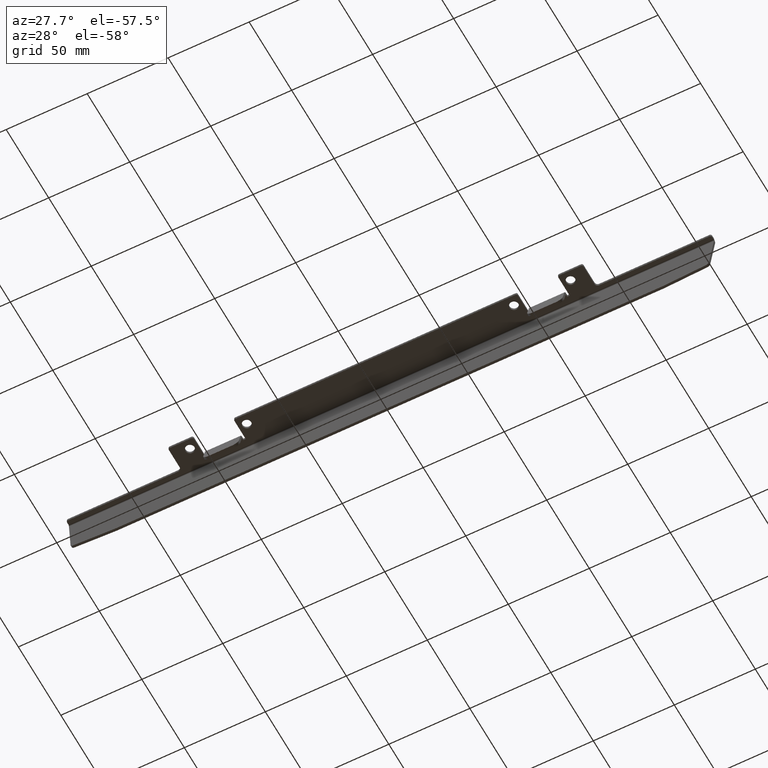
[diagram: clean part render]
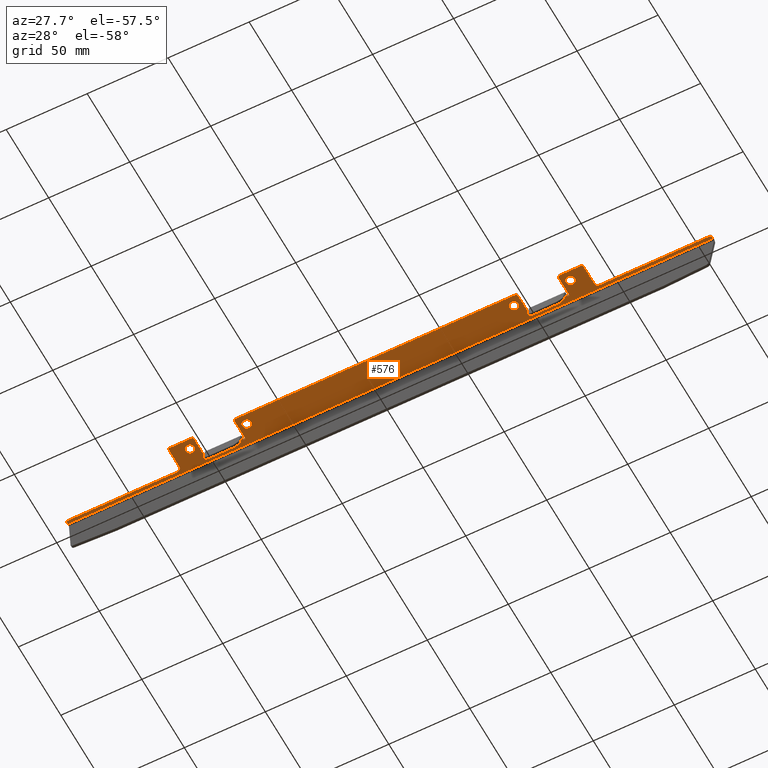
[diagram: same view with one face highlighted and labeled with its STEP entity id]
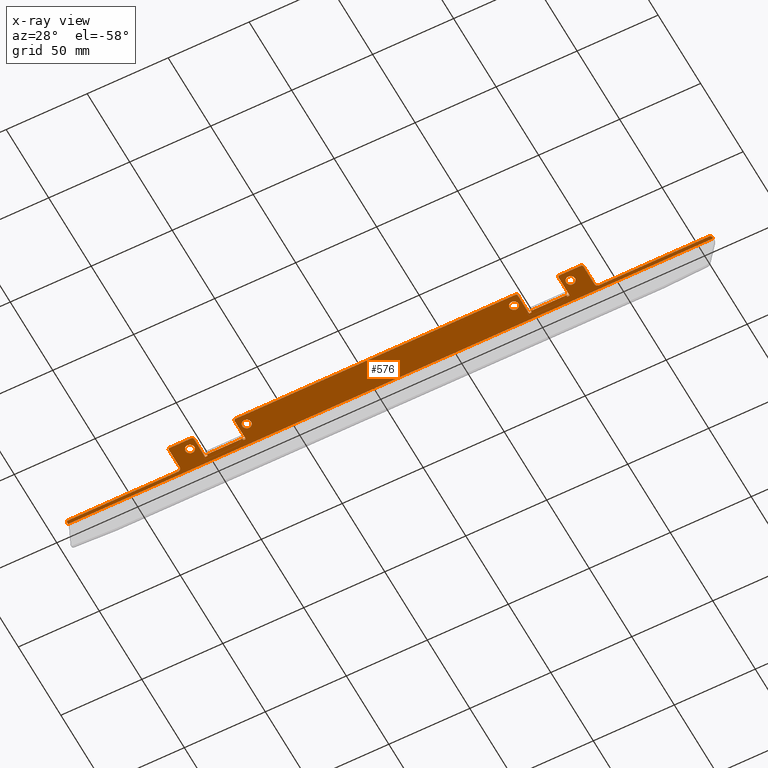
[diagram: x-ray of the same camera — body ghosted, the highlighted face saturated]
A machine part, auxiliary view. The second image highlights one B-rep face of the part: STEP entity #576.
The next image is the same camera in x-ray: the body ghosted, the highlighted face saturated — about 0% of this face is hidden behind the body in this view.
In plain terms, the highlighted planar face has unit normal (0, -0, 1).
Its self-contained STEP definition (entity closure, byte-faithful):
#3 = VECTOR ( 'NONE', #1888, 1000.000000000000000 ) ;
#13 = AXIS2_PLACEMENT_3D ( 'NONE', #918, #1870, #737 ) ;
#22 = CARTESIAN_POINT ( 'NONE',  ( 111.0000000000000000, 6.871959347178529900, -1.500000000000002700 ) ) ;
#42 = CIRCLE ( 'NONE', #1121, 2.000000000000001800 ) ;
#58 = DIRECTION ( 'NONE',  ( -0.0000000000000000000, -1.000000000000000000, -0.0000000000000000000 ) ) ;
#73 = VERTEX_POINT ( 'NONE', #376 ) ;
#86 = CARTESIAN_POINT ( 'NONE',  ( 0.0000000000000000000, -6.328040652821457000, -1.500000000000000000 ) ) ;
#93 = ORIENTED_EDGE ( 'NONE', *, *, #546, .T. ) ;
#94 = LINE ( 'NONE', #240, #2411 ) ;
#104 = AXIS2_PLACEMENT_3D ( 'NONE', #1542, #1392, #2155 ) ;
#105 = DIRECTION ( 'NONE',  ( 1.000000000000000000, 0.0000000000000000000, 0.0000000000000000000 ) ) ;
#111 = DIRECTION ( 'NONE',  ( -2.775557561562908100E-014, -1.000000000000000000, -0.0000000000000000000 ) ) ;
#112 = EDGE_CURVE ( 'NONE', #965, #1285, #1137, .T. ) ;
#121 = LINE ( 'NONE', #988, #1498 ) ;
#122 = DIRECTION ( 'NONE',  ( -0.0000000000000000000, 1.000000000000000000, -0.0000000000000000000 ) ) ;
#124 = VERTEX_POINT ( 'NONE', #22 ) ;
#127 = CIRCLE ( 'NONE', #2143, 2.749999999999988500 ) ;
#133 = CARTESIAN_POINT ( 'NONE',  ( 113.5000000000000000, -5.328040652821460600, -1.500000000000000000 ) ) ;
#144 = CARTESIAN_POINT ( 'NONE',  ( -87.50000000000001400, -5.328040652821452600, -1.500000000000000000 ) ) ;
#145 = EDGE_CURVE ( 'NONE', #788, #1007, #2318, .T. ) ;
#157 = CARTESIAN_POINT ( 'NONE',  ( -113.5000000000000000, -6.328040652821461400, -1.500000000000000000 ) ) ;
#180 = VECTOR ( 'NONE', #1555, 1000.000000000000000 ) ;
#182 = CIRCLE ( 'NONE', #256, 1.000000000000000900 ) ;
#193 = DIRECTION ( 'NONE',  ( 1.000000000000000000, 0.0000000000000000000, 0.0000000000000000000 ) ) ;
#194 = CIRCLE ( 'NONE', #13, 1.000000000000000900 ) ;
#195 = DIRECTION ( 'NONE',  ( 0.0000000000000000000, -1.000000000000000000, 0.0000000000000000000 ) ) ;
#209 = DIRECTION ( 'NONE',  ( 0.0000000000000000000, 0.0000000000000000000, 1.000000000000000000 ) ) ;
#211 = VERTEX_POINT ( 'NONE', #1300 ) ;
#216 = CARTESIAN_POINT ( 'NONE',  ( 128.0000000000000000, 7.471959347178462900, -1.500000000000000000 ) ) ;
#220 = VERTEX_POINT ( 'NONE', #1455 ) ;
#225 = CARTESIAN_POINT ( 'NONE',  ( -113.5000000000000000, -5.328040652821460600, -1.500000000000000000 ) ) ;
#231 = CARTESIAN_POINT ( 'NONE',  ( -117.5000000000000100, -0.5280406528214630600, -1.500000000000000000 ) ) ;
#236 = CARTESIAN_POINT ( 'NONE',  ( -127.0000000000000000, -5.328040652821460600, -1.500000000000000000 ) ) ;
#240 = CARTESIAN_POINT ( 'NONE',  ( 89.00000000000001400, 6.871959347178530700, -1.500000000000000000 ) ) ;
#241 = ORIENTED_EDGE ( 'NONE', *, *, #507, .F. ) ;
#256 = AXIS2_PLACEMENT_3D ( 'NONE', #2285, #1169, #1323 ) ;
#260 = CARTESIAN_POINT ( 'NONE',  ( -112.5000000000000000, -6.328040652821461400, -1.500000000000000000 ) ) ;
#280 = VERTEX_POINT ( 'NONE', #2006 ) ;
#281 = CIRCLE ( 'NONE', #717, 2.750000000000002700 ) ;
#284 = DIRECTION ( 'NONE',  ( 0.0000000000000000000, 0.0000000000000000000, 1.000000000000000000 ) ) ;
#303 = VERTEX_POINT ( 'NONE', #1129 ) ;
#306 = CIRCLE ( 'NONE', #667, 2.750000000000002700 ) ;
#307 = CARTESIAN_POINT ( 'NONE',  ( 89.00000000000004300, 7.871959347178525400, -1.500000000000000000 ) ) ;
#310 = ORIENTED_EDGE ( 'NONE', *, *, #1936, .T. ) ;
#323 = LINE ( 'NONE', #260, #1113 ) ;
#324 = AXIS2_PLACEMENT_3D ( 'NONE', #672, #832, #1042 ) ;
#327 = LINE ( 'NONE', #1421, #528 ) ;
#344 = EDGE_CURVE ( 'NONE', #1874, #303, #1173, .T. ) ;
#347 = VERTEX_POINT ( 'NONE', #593 ) ;
#376 = CARTESIAN_POINT ( 'NONE',  ( 198.0999999999999900, 9.471959347178479800, -1.500000000000000000 ) ) ;
#377 = ORIENTED_EDGE ( 'NONE', *, *, #820, .F. ) ;
#385 = EDGE_CURVE ( 'NONE', #813, #1080, #182, .T. ) ;
#393 = DIRECTION ( 'NONE',  ( 1.000000000000000000, 0.0000000000000000000, 0.0000000000000000000 ) ) ;
#394 = LINE ( 'NONE', #1754, #1123 ) ;
#404 = EDGE_CURVE ( 'NONE', #2156, #2208, #121, .T. ) ;
#411 = CARTESIAN_POINT ( 'NONE',  ( 87.50000000000001400, -6.328040652821461400, -1.500000000000000000 ) ) ;
#413 = VERTEX_POINT ( 'NONE', #1743 ) ;
#420 = CARTESIAN_POINT ( 'NONE',  ( 87.50000000000001400, 7.871959347178527200, -1.500000000000000000 ) ) ;
#421 = CIRCLE ( 'NONE', #855, 1.000000000000000900 ) ;
#422 = VECTOR ( 'NONE', #578, 1000.000000000000000 ) ;
#423 = ORIENTED_EDGE ( 'NONE', *, *, #1772, .F. ) ;
#432 = DIRECTION ( 'NONE',  ( 1.000000000000000000, -1.156482317317849000E-015, 0.0000000000000000000 ) ) ;
#436 = CARTESIAN_POINT ( 'NONE',  ( 127.0000000000000000, -6.328040652821461400, -1.500000000000000000 ) ) ;
#437 = VERTEX_POINT ( 'NONE', #436 ) ;
#438 = DIRECTION ( 'NONE',  ( 1.000000000000000000, -0.0000000000000000000, -0.0000000000000000000 ) ) ;
#442 = VECTOR ( 'NONE', #1194, 1000.000000000000000 ) ;
#452 = CIRCLE ( 'NONE', #324, 2.000000000000001800 ) ;
#473 = CARTESIAN_POINT ( 'NONE',  ( 86.50000000000001400, -6.328040652821452600, -1.500000000000000000 ) ) ;
#495 = CARTESIAN_POINT ( 'NONE',  ( 198.0999999999999900, 10.47195934717847800, -1.500000000000000000 ) ) ;
#496 = LINE ( 'NONE', #2365, #1838 ) ;
#499 = DIRECTION ( 'NONE',  ( 0.0000000000000000000, -0.0000000000000000000, 1.000000000000000000 ) ) ;
#501 = EDGE_CURVE ( 'NONE', #303, #1588, #2018, .T. ) ;
#502 = LINE ( 'NONE', #1517, #422 ) ;
#505 = LINE ( 'NONE', #2187, #1677 ) ;
#506 = VERTEX_POINT ( 'NONE', #1909 ) ;
#507 = EDGE_CURVE ( 'NONE', #220, #124, #94, .T. ) ;
#513 = DIRECTION ( 'NONE',  ( 0.0000000000000000000, -0.0000000000000000000, 1.000000000000000000 ) ) ;
#517 = EDGE_CURVE ( 'NONE', #2208, #2286, #2203, .T. ) ;
#528 = VECTOR ( 'NONE', #2151, 1000.000000000000000 ) ;
#531 = DIRECTION ( 'NONE',  ( -0.0000000000000000000, 0.0000000000000000000, -1.000000000000000000 ) ) ;
#546 = EDGE_CURVE ( 'NONE', #211, #2061, #42, .T. ) ;
#552 = CIRCLE ( 'NONE', #2111, 1.000000000000000900 ) ;
#555 = CIRCLE ( 'NONE', #2205, 2.749999999999988500 ) ;
#560 = CARTESIAN_POINT ( 'NONE',  ( 79.75000000000000000, -0.4280406528214617000, -1.500000000000000000 ) ) ;
#564 = CARTESIAN_POINT ( 'NONE',  ( -128.0000000000000000, 9.471959347178463800, -1.500000000000000000 ) ) ;
#576 = ADVANCED_FACE ( 'NONE', ( #1028, #852, #1245, #1842, #1740 ), #2188, .F. ) ;
#578 = DIRECTION ( 'NONE',  ( 0.0000000000000000000, 1.000000000000000000, 0.0000000000000000000 ) ) ;
#593 = CARTESIAN_POINT ( 'NONE',  ( -110.9999999999999700, 7.871959347178525400, -1.500000000000000000 ) ) ;
#595 = VERTEX_POINT ( 'NONE', #1248 ) ;
#600 = EDGE_LOOP ( 'NONE', ( #2160, #1915, #1372, #2023, #1114, #1341, #1658, #939, #1997, #635, #1030, #1708, #1792, #1463, #1756, #241, #2001, #2418, #2404, #1251, #700, #1226, #377, #1445, #864, #1278, #2181, #829, #1128, #1946, #423, #2332, #1769, #93 ) ) ;
#603 = EDGE_CURVE ( 'NONE', #413, #595, #1465, .T. ) ;
#612 = CARTESIAN_POINT ( 'NONE',  ( -87.50000000000001400, 7.871959347178527200, -1.500000000000000000 ) ) ;
#615 = EDGE_CURVE ( 'NONE', #1821, #73, #736, .T. ) ;
#622 = EDGE_LOOP ( 'NONE', ( #1004, #1508 ) ) ;
#626 = AXIS2_PLACEMENT_3D ( 'NONE', #718, #2212, #193 ) ;
#635 = ORIENTED_EDGE ( 'NONE', *, *, #1186, .T. ) ;
#639 = EDGE_CURVE ( 'NONE', #1623, #1105, #1185, .T. ) ;
#645 = DIRECTION ( 'NONE',  ( 1.000000000000000000, 4.956352788505162800E-017, -0.0000000000000000000 ) ) ;
#662 = EDGE_CURVE ( 'NONE', #2339, #2242, #306, .T. ) ;
#667 = AXIS2_PLACEMENT_3D ( 'NONE', #1150, #1527, #393 ) ;
#672 = CARTESIAN_POINT ( 'NONE',  ( 130.0000000000000000, 7.471959347178462900, -1.500000000000000000 ) ) ;
#684 = CARTESIAN_POINT ( 'NONE',  ( -89.00000000000001400, 6.871959347178530700, -1.500000000000000000 ) ) ;
#692 = CARTESIAN_POINT ( 'NONE',  ( -199.0999999999999900, 11.57195934717847800, -1.500000000000000000 ) ) ;
#697 = EDGE_CURVE ( 'NONE', #788, #280, #2147, .T. ) ;
#700 = ORIENTED_EDGE ( 'NONE', *, *, #2375, .F. ) ;
#717 = AXIS2_PLACEMENT_3D ( 'NONE', #2382, #1799, #1063 ) ;
#718 = CARTESIAN_POINT ( 'NONE',  ( 117.5000000000000100, -0.5280406528214630600, -1.500000000000000000 ) ) ;
#722 = CARTESIAN_POINT ( 'NONE',  ( 86.50000000000001400, -5.328040652821460600, -1.500000000000000000 ) ) ;
#730 = LINE ( 'NONE', #564, #1905 ) ;
#736 = LINE ( 'NONE', #2174, #2049 ) ;
#737 = DIRECTION ( 'NONE',  ( 1.000000000000000000, 0.0000000000000000000, 0.0000000000000000000 ) ) ;
#755 = DIRECTION ( 'NONE',  ( 1.000000000000000000, 1.156482317317849000E-015, -0.0000000000000000000 ) ) ;
#776 = DIRECTION ( 'NONE',  ( 1.000000000000000000, 0.0000000000000000000, 0.0000000000000000000 ) ) ;
#780 = EDGE_CURVE ( 'NONE', #1847, #347, #2199, .T. ) ;
#788 = VERTEX_POINT ( 'NONE', #2299 ) ;
#789 = CARTESIAN_POINT ( 'NONE',  ( 112.5000000000000000, -6.328040652821461400, -1.500000000000000000 ) ) ;
#813 = VERTEX_POINT ( 'NONE', #1176 ) ;
#818 = VERTEX_POINT ( 'NONE', #1367 ) ;
#820 = EDGE_CURVE ( 'NONE', #1714, #1080, #1438, .T. ) ;
#829 = ORIENTED_EDGE ( 'NONE', *, *, #780, .F. ) ;
#832 = DIRECTION ( 'NONE',  ( 0.0000000000000000000, -0.0000000000000000000, 1.000000000000000000 ) ) ;
#849 = EDGE_CURVE ( 'NONE', #1882, #1940, #1638, .T. ) ;
#852 = FACE_BOUND ( 'NONE', #2247, .T. ) ;
#855 = AXIS2_PLACEMENT_3D ( 'NONE', #495, #1805, #105 ) ;
#860 = DIRECTION ( 'NONE',  ( 1.000000000000000000, -0.0000000000000000000, -0.0000000000000000000 ) ) ;
#864 = ORIENTED_EDGE ( 'NONE', *, *, #1203, .F. ) ;
#873 = CIRCLE ( 'NONE', #1102, 1.000000000000000900 ) ;
#876 = VECTOR ( 'NONE', #432, 1000.000000000000000 ) ;
#879 = AXIS2_PLACEMENT_3D ( 'NONE', #2431, #499, #1065 ) ;
#918 = CARTESIAN_POINT ( 'NONE',  ( -198.0999999999999900, 10.47195934717847800, -1.500000000000000000 ) ) ;
#920 = ORIENTED_EDGE ( 'NONE', *, *, #1067, .T. ) ;
#929 = VERTEX_POINT ( 'NONE', #1416 ) ;
#939 = ORIENTED_EDGE ( 'NONE', *, *, #1806, .T. ) ;
#941 = EDGE_CURVE ( 'NONE', #929, #73, #421, .T. ) ;
#949 = VERTEX_POINT ( 'NONE', #1060 ) ;
#961 = DIRECTION ( 'NONE',  ( -1.000000000000000000, 0.0000000000000000000, 0.0000000000000000000 ) ) ;
#962 = DIRECTION ( 'NONE',  ( -0.0000000000000000000, 0.0000000000000000000, -1.000000000000000000 ) ) ;
#965 = VERTEX_POINT ( 'NONE', #1244 ) ;
#976 = VERTEX_POINT ( 'NONE', #1597 ) ;
#979 = CARTESIAN_POINT ( 'NONE',  ( -112.5000000000000000, 7.871959347178527200, -1.500000000000000000 ) ) ;
#981 = CARTESIAN_POINT ( 'NONE',  ( 111.0000000000000000, 6.871959347178530700, -1.500000000000000000 ) ) ;
#988 = CARTESIAN_POINT ( 'NONE',  ( -199.0999999999999900, 11.57195934717847800, -1.500000000000000000 ) ) ;
#990 = EDGE_CURVE ( 'NONE', #949, #1588, #873, .T. ) ;
#991 = ORIENTED_EDGE ( 'NONE', *, *, #662, .T. ) ;
#1004 = ORIENTED_EDGE ( 'NONE', *, *, #1783, .T. ) ;
#1005 = EDGE_CURVE ( 'NONE', #347, #413, #496, .T. ) ;
#1007 = VERTEX_POINT ( 'NONE', #473 ) ;
#1008 = EDGE_LOOP ( 'NONE', ( #1817, #1899 ) ) ;
#1022 = LINE ( 'NONE', #420, #2324 ) ;
#1028 = FACE_BOUND ( 'NONE', #1008, .T. ) ;
#1030 = ORIENTED_EDGE ( 'NONE', *, *, #1803, .F. ) ;
#1041 = DIRECTION ( 'NONE',  ( 1.000000000000000000, 0.0000000000000000000, 0.0000000000000000000 ) ) ;
#1042 = DIRECTION ( 'NONE',  ( 1.000000000000000000, 0.0000000000000000000, 0.0000000000000000000 ) ) ;
#1048 = VECTOR ( 'NONE', #2436, 1000.000000000000000 ) ;
#1053 = EDGE_CURVE ( 'NONE', #929, #2156, #1210, .T. ) ;
#1060 = CARTESIAN_POINT ( 'NONE',  ( 113.5000000000000000, -6.328040652821461400, -1.500000000000000000 ) ) ;
#1063 = DIRECTION ( 'NONE',  ( 1.000000000000000000, 0.0000000000000000000, 0.0000000000000000000 ) ) ;
#1065 = DIRECTION ( 'NONE',  ( 1.000000000000000000, 0.0000000000000000000, -0.0000000000000000000 ) ) ;
#1067 = EDGE_CURVE ( 'NONE', #1940, #1882, #555, .T. ) ;
#1074 = ORIENTED_EDGE ( 'NONE', *, *, #849, .T. ) ;
#1080 = VERTEX_POINT ( 'NONE', #144 ) ;
#1102 = AXIS2_PLACEMENT_3D ( 'NONE', #133, #2168, #1041 ) ;
#1105 = VERTEX_POINT ( 'NONE', #1269 ) ;
#1109 = LINE ( 'NONE', #1765, #442 ) ;
#1111 = CARTESIAN_POINT ( 'NONE',  ( -130.0000000000000000, 9.471959347178463800, -1.500000000000000000 ) ) ;
#1113 = VECTOR ( 'NONE', #438, 1000.000000000000000 ) ;
#1114 = ORIENTED_EDGE ( 'NONE', *, *, #1053, .F. ) ;
#1118 = CARTESIAN_POINT ( 'NONE',  ( 128.0000000000000000, 9.471959347178463800, -1.500000000000000000 ) ) ;
#1121 = AXIS2_PLACEMENT_3D ( 'NONE', #2374, #513, #1490 ) ;
#1123 = VECTOR ( 'NONE', #2346, 1000.000000000000000 ) ;
#1128 = ORIENTED_EDGE ( 'NONE', *, *, #2186, .F. ) ;
#1129 = CARTESIAN_POINT ( 'NONE',  ( 112.5000000000000000, 7.871959347178527200, -1.500000000000000000 ) ) ;
#1134 = CARTESIAN_POINT ( 'NONE',  ( 199.0999999999999700, 11.57195934717847900, -1.499999999999996700 ) ) ;
#1137 = CIRCLE ( 'NONE', #1774, 1.000000000000000900 ) ;
#1150 = CARTESIAN_POINT ( 'NONE',  ( 82.50000000000000000, -0.4280406528214620300, -1.500000000000000000 ) ) ;
#1169 = DIRECTION ( 'NONE',  ( -0.0000000000000000000, 0.0000000000000000000, -1.000000000000000000 ) ) ;
#1173 = LINE ( 'NONE', #1352, #1481 ) ;
#1176 = CARTESIAN_POINT ( 'NONE',  ( -86.50000000000001400, -6.328040652821461400, -1.500000000000000000 ) ) ;
#1185 = CIRCLE ( 'NONE', #1223, 2.750000000000002700 ) ;
#1186 = EDGE_CURVE ( 'NONE', #1446, #437, #1759, .T. ) ;
#1194 = DIRECTION ( 'NONE',  ( 1.000000000000000000, 1.156482317317849000E-015, -0.0000000000000000000 ) ) ;
#1202 = DIRECTION ( 'NONE',  ( 1.000000000000000000, 0.0000000000000000000, 0.0000000000000000000 ) ) ;
#1203 = EDGE_CURVE ( 'NONE', #595, #818, #1383, .T. ) ;
#1210 = LINE ( 'NONE', #1779, #2197 ) ;
#1212 = CARTESIAN_POINT ( 'NONE',  ( -112.5000000000000000, 7.871959347178527200, -1.500000000000000000 ) ) ;
#1223 = AXIS2_PLACEMENT_3D ( 'NONE', #1895, #209, #961 ) ;
#1226 = ORIENTED_EDGE ( 'NONE', *, *, #385, .T. ) ;
#1237 = CARTESIAN_POINT ( 'NONE',  ( -117.5000000000000100, -0.5280406528214630600, -1.500000000000000000 ) ) ;
#1238 = LINE ( 'NONE', #1118, #1048 ) ;
#1244 = CARTESIAN_POINT ( 'NONE',  ( -112.5000000000000000, -5.328040652821460600, -1.500000000000000000 ) ) ;
#1245 = FACE_BOUND ( 'NONE', #622, .T. ) ;
#1248 = CARTESIAN_POINT ( 'NONE',  ( -89.00000000000001400, 6.871959347178529900, -1.500000000000002700 ) ) ;
#1251 = ORIENTED_EDGE ( 'NONE', *, *, #145, .T. ) ;
#1269 = CARTESIAN_POINT ( 'NONE',  ( -79.75000000000000000, -0.4280406528214620300, -1.500000000000000000 ) ) ;
#1271 = VERTEX_POINT ( 'NONE', #2344 ) ;
#1278 = ORIENTED_EDGE ( 'NONE', *, *, #603, .F. ) ;
#1285 = VERTEX_POINT ( 'NONE', #157 ) ;
#1300 = CARTESIAN_POINT ( 'NONE',  ( -128.0000000000000000, 7.471959347178463800, -1.500000000000000000 ) ) ;
#1323 = DIRECTION ( 'NONE',  ( 1.000000000000000000, 0.0000000000000000000, 0.0000000000000000000 ) ) ;
#1335 = CARTESIAN_POINT ( 'NONE',  ( -114.7500000000000300, -0.5280406528214630600, -1.500000000000000000 ) ) ;
#1341 = ORIENTED_EDGE ( 'NONE', *, *, #941, .T. ) ;
#1344 = DIRECTION ( 'NONE',  ( 1.000000000000000000, -1.156482317317849000E-015, 0.0000000000000000000 ) ) ;
#1346 = DIRECTION ( 'NONE',  ( -0.0000000000000000000, 0.0000000000000000000, -1.000000000000000000 ) ) ;
#1352 = CARTESIAN_POINT ( 'NONE',  ( 112.5000000000000000, 7.871959347178527200, -1.500000000000000000 ) ) ;
#1357 = CARTESIAN_POINT ( 'NONE',  ( 128.0000000000000000, -5.328040652821460600, -1.500000000000000000 ) ) ;
#1367 = CARTESIAN_POINT ( 'NONE',  ( -89.00000000000004300, 7.871959347178525400, -1.500000000000000000 ) ) ;
#1372 = ORIENTED_EDGE ( 'NONE', *, *, #517, .F. ) ;
#1374 = DIRECTION ( 'NONE',  ( -1.000000000000000000, 0.0000000000000000000, 0.0000000000000000000 ) ) ;
#1375 = VERTEX_POINT ( 'NONE', #1661 ) ;
#1383 = LINE ( 'NONE', #2145, #180 ) ;
#1392 = DIRECTION ( 'NONE',  ( 0.0000000000000000000, 0.0000000000000000000, 1.000000000000000000 ) ) ;
#1401 = EDGE_CURVE ( 'NONE', #1446, #2314, #1238, .T. ) ;
#1416 = CARTESIAN_POINT ( 'NONE',  ( 199.0999999999999900, 10.47195934717847800, -1.500000000000000000 ) ) ;
#1421 = CARTESIAN_POINT ( 'NONE',  ( 89.00000000000001400, 6.871959347178530700, -1.500000000000000000 ) ) ;
#1424 = DIRECTION ( 'NONE',  ( 1.000000000000000000, 2.195852501236464500E-016, 0.0000000000000000000 ) ) ;
#1429 = EDGE_CURVE ( 'NONE', #211, #1271, #730, .T. ) ;
#1432 = LINE ( 'NONE', #981, #2010 ) ;
#1438 = LINE ( 'NONE', #2309, #1959 ) ;
#1442 = EDGE_CURVE ( 'NONE', #1375, #2185, #1663, .T. ) ;
#1445 = ORIENTED_EDGE ( 'NONE', *, *, #1600, .F. ) ;
#1446 = VERTEX_POINT ( 'NONE', #1357 ) ;
#1455 = CARTESIAN_POINT ( 'NONE',  ( 89.00000000000001400, 6.871959347178529900, -1.499999999999996200 ) ) ;
#1463 = ORIENTED_EDGE ( 'NONE', *, *, #344, .F. ) ;
#1465 = LINE ( 'NONE', #684, #2115 ) ;
#1476 = EDGE_CURVE ( 'NONE', #506, #1271, #552, .T. ) ;
#1481 = VECTOR ( 'NONE', #755, 1000.000000000000000 ) ;
#1490 = DIRECTION ( 'NONE',  ( 1.000000000000000000, 0.0000000000000000000, 0.0000000000000000000 ) ) ;
#1498 = VECTOR ( 'NONE', #1918, 1000.000000000000000 ) ;
#1508 = ORIENTED_EDGE ( 'NONE', *, *, #639, .T. ) ;
#1517 = CARTESIAN_POINT ( 'NONE',  ( -112.5000000000000000, -6.328040652821461400, -1.500000000000000000 ) ) ;
#1520 = DIRECTION ( 'NONE',  ( 0.0000000000000000000, 0.0000000000000000000, 1.000000000000000000 ) ) ;
#1527 = DIRECTION ( 'NONE',  ( 0.0000000000000000000, 0.0000000000000000000, 1.000000000000000000 ) ) ;
#1528 = EDGE_CURVE ( 'NONE', #280, #2437, #1022, .T. ) ;
#1531 = VECTOR ( 'NONE', #1926, 1000.000000000000000 ) ;
#1539 = DIRECTION ( 'NONE',  ( 1.000000000000000000, 0.0000000000000000000, 0.0000000000000000000 ) ) ;
#1540 = EDGE_CURVE ( 'NONE', #124, #1874, #1432, .T. ) ;
#1542 = CARTESIAN_POINT ( 'NONE',  ( -82.50000000000000000, -0.4280406528214620300, -1.500000000000000000 ) ) ;
#1555 = DIRECTION ( 'NONE',  ( -2.775557561562908100E-014, 1.000000000000000000, 0.0000000000000000000 ) ) ;
#1573 = CARTESIAN_POINT ( 'NONE',  ( 127.0000000000000000, -5.328040652821460600, -1.500000000000000000 ) ) ;
#1581 = CARTESIAN_POINT ( 'NONE',  ( 130.0000000000000000, 9.471959347178463800, -1.500000000000000000 ) ) ;
#1588 = VERTEX_POINT ( 'NONE', #1937 ) ;
#1597 = CARTESIAN_POINT ( 'NONE',  ( -198.0999999999999900, 9.471959347178479800, -1.500000000000000000 ) ) ;
#1598 = CARTESIAN_POINT ( 'NONE',  ( 120.2500000000000100, -0.5280406528214630600, -1.500000000000000000 ) ) ;
#1600 = EDGE_CURVE ( 'NONE', #818, #1714, #1109, .T. ) ;
#1608 = AXIS2_PLACEMENT_3D ( 'NONE', #231, #1520, #1374 ) ;
#1623 = VERTEX_POINT ( 'NONE', #1927 ) ;
#1636 = DIRECTION ( 'NONE',  ( 0.0000000000000000000, 0.0000000000000000000, 1.000000000000000000 ) ) ;
#1638 = CIRCLE ( 'NONE', #626, 2.749999999999988500 ) ;
#1658 = ORIENTED_EDGE ( 'NONE', *, *, #615, .F. ) ;
#1661 = CARTESIAN_POINT ( 'NONE',  ( -120.2500000000000100, -0.5280406528214627300, -1.500000000000000000 ) ) ;
#1663 = CIRCLE ( 'NONE', #1608, 2.749999999999988500 ) ;
#1672 = VECTOR ( 'NONE', #2368, 1000.000000000000000 ) ;
#1677 = VECTOR ( 'NONE', #1843, 1000.000000000000000 ) ;
#1708 = ORIENTED_EDGE ( 'NONE', *, *, #990, .T. ) ;
#1714 = VERTEX_POINT ( 'NONE', #612 ) ;
#1740 = FACE_OUTER_BOUND ( 'NONE', #600, .T. ) ;
#1743 = CARTESIAN_POINT ( 'NONE',  ( -111.0000000000000000, 6.871959347178529900, -1.499999999999996200 ) ) ;
#1754 = CARTESIAN_POINT ( 'NONE',  ( 112.5000000000000000, -6.328040652821461400, -1.500000000000000000 ) ) ;
#1756 = ORIENTED_EDGE ( 'NONE', *, *, #1540, .F. ) ;
#1759 = CIRCLE ( 'NONE', #2293, 1.000000000000000900 ) ;
#1765 = CARTESIAN_POINT ( 'NONE',  ( -87.50000000000001400, 7.871959347178527200, -1.500000000000000000 ) ) ;
#1769 = ORIENTED_EDGE ( 'NONE', *, *, #1429, .F. ) ;
#1772 = EDGE_CURVE ( 'NONE', #506, #1285, #323, .T. ) ;
#1774 = AXIS2_PLACEMENT_3D ( 'NONE', #225, #1346, #776 ) ;
#1779 = CARTESIAN_POINT ( 'NONE',  ( 199.0999999999999900, 11.57195934717847800, -1.500000000000000000 ) ) ;
#1783 = EDGE_CURVE ( 'NONE', #1105, #1623, #1942, .T. ) ;
#1792 = ORIENTED_EDGE ( 'NONE', *, *, #501, .F. ) ;
#1799 = DIRECTION ( 'NONE',  ( 0.0000000000000000000, 0.0000000000000000000, 1.000000000000000000 ) ) ;
#1803 = EDGE_CURVE ( 'NONE', #949, #437, #394, .T. ) ;
#1805 = DIRECTION ( 'NONE',  ( -0.0000000000000000000, 0.0000000000000000000, -1.000000000000000000 ) ) ;
#1806 = EDGE_CURVE ( 'NONE', #1821, #2314, #452, .T. ) ;
#1817 = ORIENTED_EDGE ( 'NONE', *, *, #1865, .T. ) ;
#1821 = VERTEX_POINT ( 'NONE', #1581 ) ;
#1838 = VECTOR ( 'NONE', #111, 1000.000000000000000 ) ;
#1842 = FACE_BOUND ( 'NONE', #1907, .T. ) ;
#1843 = DIRECTION ( 'NONE',  ( 1.000000000000000000, -2.195852501236464500E-016, -0.0000000000000000000 ) ) ;
#1846 = VECTOR ( 'NONE', #645, 1000.000000000000000 ) ;
#1847 = VERTEX_POINT ( 'NONE', #1212 ) ;
#1865 = EDGE_CURVE ( 'NONE', #2185, #1375, #127, .T. ) ;
#1870 = DIRECTION ( 'NONE',  ( -0.0000000000000000000, 0.0000000000000000000, -1.000000000000000000 ) ) ;
#1874 = VERTEX_POINT ( 'NONE', #2150 ) ;
#1882 = VERTEX_POINT ( 'NONE', #1598 ) ;
#1888 = DIRECTION ( 'NONE',  ( 0.0000000000000000000, 1.000000000000000000, 0.0000000000000000000 ) ) ;
#1895 = CARTESIAN_POINT ( 'NONE',  ( -82.50000000000000000, -0.4280406528214620300, -1.500000000000000000 ) ) ;
#1899 = ORIENTED_EDGE ( 'NONE', *, *, #1442, .T. ) ;
#1905 = VECTOR ( 'NONE', #195, 1000.000000000000000 ) ;
#1907 = EDGE_LOOP ( 'NONE', ( #1074, #920 ) ) ;
#1909 = CARTESIAN_POINT ( 'NONE',  ( -127.0000000000000000, -6.328040652821461400, -1.500000000000000000 ) ) ;
#1915 = ORIENTED_EDGE ( 'NONE', *, *, #2059, .T. ) ;
#1918 = DIRECTION ( 'NONE',  ( -1.000000000000000000, -0.0000000000000000000, -0.0000000000000000000 ) ) ;
#1926 = DIRECTION ( 'NONE',  ( -0.0000000000000000000, -1.000000000000000000, -0.0000000000000000000 ) ) ;
#1927 = CARTESIAN_POINT ( 'NONE',  ( -85.25000000000000000, -0.4280406528214617000, -1.500000000000000000 ) ) ;
#1936 = EDGE_CURVE ( 'NONE', #2242, #2339, #281, .T. ) ;
#1937 = CARTESIAN_POINT ( 'NONE',  ( 112.5000000000000000, -5.328040652821460600, -1.500000000000000000 ) ) ;
#1940 = VERTEX_POINT ( 'NONE', #1981 ) ;
#1942 = CIRCLE ( 'NONE', #104, 2.750000000000002700 ) ;
#1946 = ORIENTED_EDGE ( 'NONE', *, *, #112, .T. ) ;
#1959 = VECTOR ( 'NONE', #58, 1000.000000000000000 ) ;
#1981 = CARTESIAN_POINT ( 'NONE',  ( 114.7500000000000300, -0.5280406528214627300, -1.500000000000000000 ) ) ;
#1997 = ORIENTED_EDGE ( 'NONE', *, *, #1401, .F. ) ;
#2001 = ORIENTED_EDGE ( 'NONE', *, *, #2405, .F. ) ;
#2006 = CARTESIAN_POINT ( 'NONE',  ( 87.50000000000001400, 7.871959347178527200, -1.500000000000000000 ) ) ;
#2010 = VECTOR ( 'NONE', #2301, 1000.000000000000000 ) ;
#2018 = LINE ( 'NONE', #789, #1531 ) ;
#2023 = ORIENTED_EDGE ( 'NONE', *, *, #404, .F. ) ;
#2049 = VECTOR ( 'NONE', #1424, 1000.000000000000000 ) ;
#2052 = EDGE_CURVE ( 'NONE', #976, #2061, #505, .T. ) ;
#2059 = EDGE_CURVE ( 'NONE', #976, #2286, #194, .T. ) ;
#2061 = VERTEX_POINT ( 'NONE', #1111 ) ;
#2093 = CARTESIAN_POINT ( 'NONE',  ( -199.0999999999999900, 11.57195934717847900, -1.499999999999996700 ) ) ;
#2111 = AXIS2_PLACEMENT_3D ( 'NONE', #236, #962, #2273 ) ;
#2115 = VECTOR ( 'NONE', #860, 1000.000000000000000 ) ;
#2121 = DIRECTION ( 'NONE',  ( -0.0000000000000000000, 0.0000000000000000000, -1.000000000000000000 ) ) ;
#2137 = DIRECTION ( 'NONE',  ( -1.000000000000000000, 0.0000000000000000000, 0.0000000000000000000 ) ) ;
#2143 = AXIS2_PLACEMENT_3D ( 'NONE', #1237, #284, #2137 ) ;
#2145 = CARTESIAN_POINT ( 'NONE',  ( -89.00000000000001400, 6.871959347178530700, -1.500000000000000000 ) ) ;
#2147 = LINE ( 'NONE', #411, #3 ) ;
#2150 = CARTESIAN_POINT ( 'NONE',  ( 110.9999999999999700, 7.871959347178525400, -1.500000000000000000 ) ) ;
#2151 = DIRECTION ( 'NONE',  ( -2.775557561562908100E-014, -1.000000000000000000, -0.0000000000000000000 ) ) ;
#2154 = AXIS2_PLACEMENT_3D ( 'NONE', #722, #531, #2231 ) ;
#2155 = DIRECTION ( 'NONE',  ( -1.000000000000000000, 0.0000000000000000000, 0.0000000000000000000 ) ) ;
#2156 = VERTEX_POINT ( 'NONE', #1134 ) ;
#2157 = CARTESIAN_POINT ( 'NONE',  ( 85.25000000000000000, -0.4280406528214620300, -1.500000000000000000 ) ) ;
#2160 = ORIENTED_EDGE ( 'NONE', *, *, #2052, .F. ) ;
#2168 = DIRECTION ( 'NONE',  ( -0.0000000000000000000, 0.0000000000000000000, -1.000000000000000000 ) ) ;
#2174 = CARTESIAN_POINT ( 'NONE',  ( 128.0000000000000000, 9.471959347178463800, -1.500000000000000000 ) ) ;
#2181 = ORIENTED_EDGE ( 'NONE', *, *, #1005, .F. ) ;
#2185 = VERTEX_POINT ( 'NONE', #1335 ) ;
#2186 = EDGE_CURVE ( 'NONE', #965, #1847, #502, .T. ) ;
#2187 = CARTESIAN_POINT ( 'NONE',  ( -128.0000000000000000, 9.471959347178463800, -1.500000000000000000 ) ) ;
#2188 = PLANE ( 'NONE',  #879 ) ;
#2197 = VECTOR ( 'NONE', #122, 1000.000000000000000 ) ;
#2198 = DIRECTION ( 'NONE',  ( 1.000000000000000000, 0.0000000000000000000, 0.0000000000000000000 ) ) ;
#2199 = LINE ( 'NONE', #979, #876 ) ;
#2203 = LINE ( 'NONE', #692, #1672 ) ;
#2205 = AXIS2_PLACEMENT_3D ( 'NONE', #2408, #1636, #2198 ) ;
#2208 = VERTEX_POINT ( 'NONE', #2093 ) ;
#2212 = DIRECTION ( 'NONE',  ( 0.0000000000000000000, 0.0000000000000000000, 1.000000000000000000 ) ) ;
#2231 = DIRECTION ( 'NONE',  ( 1.000000000000000000, 0.0000000000000000000, 0.0000000000000000000 ) ) ;
#2242 = VERTEX_POINT ( 'NONE', #560 ) ;
#2247 = EDGE_LOOP ( 'NONE', ( #991, #310 ) ) ;
#2259 = CARTESIAN_POINT ( 'NONE',  ( -199.0999999999999900, 10.47195934717847800, -1.500000000000000000 ) ) ;
#2273 = DIRECTION ( 'NONE',  ( 1.000000000000000000, 0.0000000000000000000, 0.0000000000000000000 ) ) ;
#2285 = CARTESIAN_POINT ( 'NONE',  ( -86.50000000000001400, -5.328040652821452600, -1.500000000000000000 ) ) ;
#2286 = VERTEX_POINT ( 'NONE', #2259 ) ;
#2293 = AXIS2_PLACEMENT_3D ( 'NONE', #1573, #2121, #1202 ) ;
#2299 = CARTESIAN_POINT ( 'NONE',  ( 87.50000000000001400, -5.328040652821460600, -1.500000000000000000 ) ) ;
#2301 = DIRECTION ( 'NONE',  ( -2.775557561562908100E-014, 1.000000000000000000, 0.0000000000000000000 ) ) ;
#2309 = CARTESIAN_POINT ( 'NONE',  ( -87.50000000000001400, -6.328040652821461400, -1.500000000000000000 ) ) ;
#2314 = VERTEX_POINT ( 'NONE', #216 ) ;
#2318 = CIRCLE ( 'NONE', #2154, 1.000000000000000900 ) ;
#2324 = VECTOR ( 'NONE', #1344, 1000.000000000000000 ) ;
#2330 = LINE ( 'NONE', #86, #1846 ) ;
#2332 = ORIENTED_EDGE ( 'NONE', *, *, #1476, .T. ) ;
#2339 = VERTEX_POINT ( 'NONE', #2157 ) ;
#2344 = CARTESIAN_POINT ( 'NONE',  ( -128.0000000000000000, -5.328040652821460600, -1.500000000000000000 ) ) ;
#2346 = DIRECTION ( 'NONE',  ( 1.000000000000000000, 0.0000000000000000000, 0.0000000000000000000 ) ) ;
#2365 = CARTESIAN_POINT ( 'NONE',  ( -111.0000000000000000, 6.871959347178530700, -1.500000000000000000 ) ) ;
#2368 = DIRECTION ( 'NONE',  ( 0.0000000000000000000, -1.000000000000000000, 0.0000000000000000000 ) ) ;
#2374 = CARTESIAN_POINT ( 'NONE',  ( -130.0000000000000000, 7.471959347178463800, -1.500000000000000000 ) ) ;
#2375 = EDGE_CURVE ( 'NONE', #813, #1007, #2330, .T. ) ;
#2382 = CARTESIAN_POINT ( 'NONE',  ( 82.50000000000000000, -0.4280406528214620300, -1.500000000000000000 ) ) ;
#2404 = ORIENTED_EDGE ( 'NONE', *, *, #697, .F. ) ;
#2405 = EDGE_CURVE ( 'NONE', #2437, #220, #327, .T. ) ;
#2408 = CARTESIAN_POINT ( 'NONE',  ( 117.5000000000000100, -0.5280406528214630600, -1.500000000000000000 ) ) ;
#2411 = VECTOR ( 'NONE', #1539, 1000.000000000000000 ) ;
#2418 = ORIENTED_EDGE ( 'NONE', *, *, #1528, .F. ) ;
#2431 = CARTESIAN_POINT ( 'NONE',  ( 0.0000000000000000000, 0.0000000000000000000, -1.500000000000000000 ) ) ;
#2436 = DIRECTION ( 'NONE',  ( -0.0000000000000000000, 1.000000000000000000, -0.0000000000000000000 ) ) ;
#2437 = VERTEX_POINT ( 'NONE', #307 ) ;